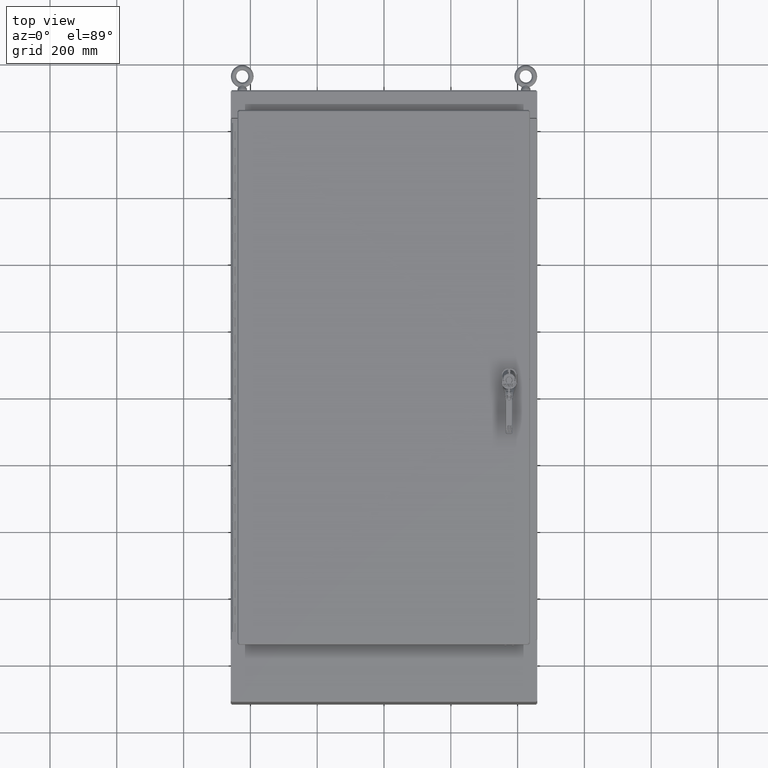
[diagram: clean part render]
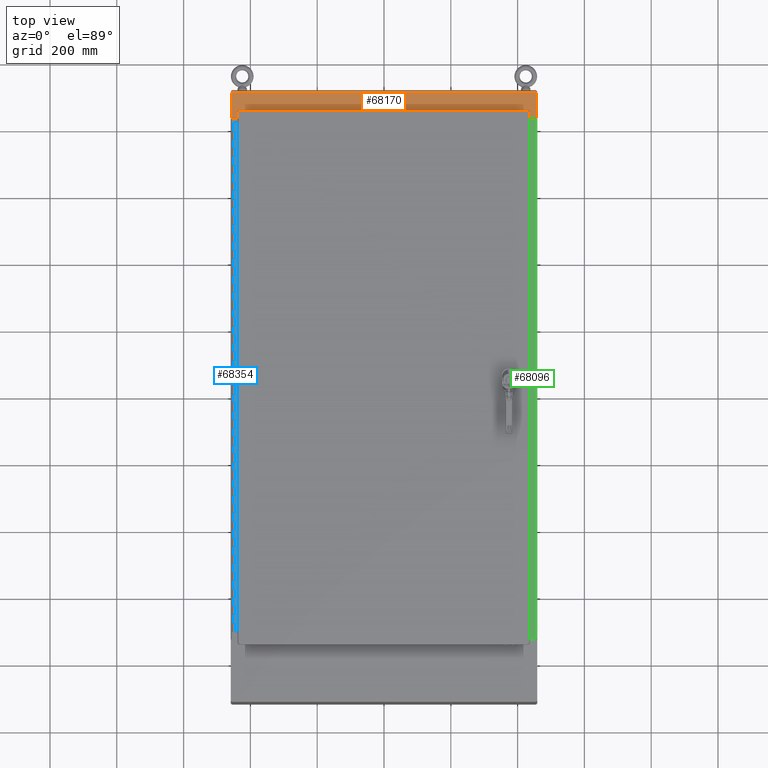
[diagram: same view with three faces highlighted in distinct colors, each labeled with its STEP entity id]
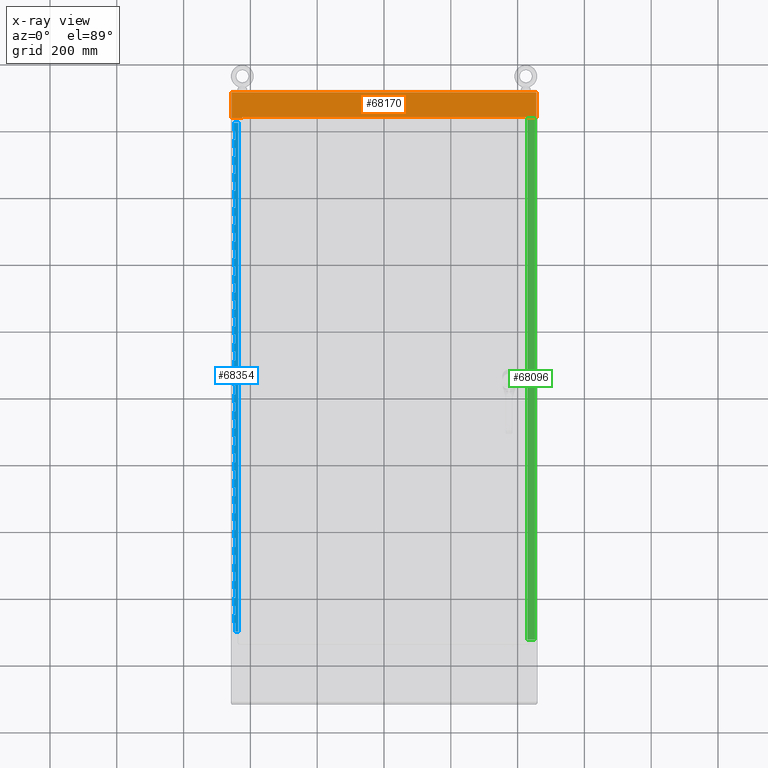
[diagram: x-ray of the same camera — body ghosted, the three highlighted faces saturated]
A machine part, top view with three faces highlighted in distinct colors.
The next image is the same camera in x-ray (body ghosted, the three faces saturated) — at least one of them is partly hidden behind the body in this view.
Their STEP definitions:

[orange] entity #68170 — the highlighted planar face has unit normal (0, -0, 1).
#9261=PLANE('',#71996);
#10439=FACE_OUTER_BOUND('',#13387,.T.);
#13387=EDGE_LOOP('',(#50561,#50562,#50563,#50564,#50565,#50566,#50567,#50568,
#50569,#50570,#50571,#50572));
#20109=LINE('',#96424,#25227);
#20111=LINE('',#96430,#25229);
#20124=LINE('',#96469,#25242);
#20158=LINE('',#96554,#25276);
#20160=LINE('',#96558,#25278);
#20161=LINE('',#96561,#25279);
#20163=LINE('',#96564,#25281);
#20164=LINE('',#96567,#25282);
#20166=LINE('',#96570,#25284);
#20167=LINE('',#96573,#25285);
#20168=LINE('',#96575,#25286);
#20169=LINE('',#96576,#25287);
#25227=VECTOR('',#78560,0.393700787401575);
#25229=VECTOR('',#78564,0.393700787401575);
#25242=VECTOR('',#78595,0.393700787401575);
#25276=VECTOR('',#78689,0.393700787401575);
#25278=VECTOR('',#78693,0.393700787401575);
#25279=VECTOR('',#78696,0.393700787401575);
#25281=VECTOR('',#78700,0.393700787401575);
#25282=VECTOR('',#78703,0.393700787401575);
#25284=VECTOR('',#78707,0.393700787401575);
#25285=VECTOR('',#78710,0.393700787401575);
#25286=VECTOR('',#78711,0.393700787401575);
#25287=VECTOR('',#78712,0.179624999999999);
#30299=VERTEX_POINT('',#96418);
#30301=VERTEX_POINT('',#96422);
#30302=VERTEX_POINT('',#96426);
#30304=VERTEX_POINT('',#96429);
#30310=VERTEX_POINT('',#96442);
#30318=VERTEX_POINT('',#96459);
#30321=VERTEX_POINT('',#96467);
#30343=VERTEX_POINT('',#96556);
#30344=VERTEX_POINT('',#96560);
#30345=VERTEX_POINT('',#96566);
#30346=VERTEX_POINT('',#96572);
#30347=VERTEX_POINT('',#96574);
#39634=EDGE_CURVE('',#30299,#30301,#20109,.T.);
#39636=EDGE_CURVE('',#30304,#30302,#20111,.T.);
#39655=EDGE_CURVE('',#30302,#30321,#20124,.T.);
#39699=EDGE_CURVE('',#30318,#30310,#20158,.T.);
#39701=EDGE_CURVE('',#30310,#30343,#20160,.T.);
#39702=EDGE_CURVE('',#30344,#30299,#20161,.T.);
#39704=EDGE_CURVE('',#30343,#30344,#20163,.T.);
#39705=EDGE_CURVE('',#30345,#30318,#20164,.T.);
#39707=EDGE_CURVE('',#30321,#30345,#20166,.T.);
#39708=EDGE_CURVE('',#30346,#30301,#20167,.T.);
#39709=EDGE_CURVE('',#30346,#30347,#20168,.T.);
#39710=EDGE_CURVE('',#30304,#30347,#20169,.T.);
#50561=ORIENTED_EDGE('',*,*,#39634,.T.);
#50562=ORIENTED_EDGE('',*,*,#39708,.F.);
#50563=ORIENTED_EDGE('',*,*,#39709,.T.);
#50564=ORIENTED_EDGE('',*,*,#39710,.F.);
#50565=ORIENTED_EDGE('',*,*,#39636,.T.);
#50566=ORIENTED_EDGE('',*,*,#39655,.T.);
#50567=ORIENTED_EDGE('',*,*,#39707,.T.);
#50568=ORIENTED_EDGE('',*,*,#39705,.T.);
#50569=ORIENTED_EDGE('',*,*,#39699,.T.);
#50570=ORIENTED_EDGE('',*,*,#39701,.T.);
#50571=ORIENTED_EDGE('',*,*,#39704,.T.);
#50572=ORIENTED_EDGE('',*,*,#39702,.T.);
#68170=ADVANCED_FACE('',(#10439),#9261,.T.);
#71996=AXIS2_PLACEMENT_3D('',#96571,#78708,#78709);
#78560=DIRECTION('',(1.,-4.67339864028056E-16,2.75119231462648E-16));
#78564=DIRECTION('',(1.,-4.67339864028056E-16,-4.66415019167958E-35));
#78595=DIRECTION('',(0.,-1.72379377816535E-15,1.));
#78689=DIRECTION('',(1.,-4.67339864028056E-16,4.19087991837034E-17));
#78693=DIRECTION('',(0.,-1.72379377816535E-15,1.));
#78696=DIRECTION('',(0.,1.72379377816535E-15,-1.));
#78700=DIRECTION('',(1.,-4.67339864028056E-16,-1.57132488603615E-30));
#78703=DIRECTION('',(0.,1.72379377816535E-15,-1.));
#78707=DIRECTION('',(1.,-4.67339864028056E-16,-1.57132488603615E-30));
#78708=DIRECTION('center_axis',(-4.67339864028056E-16,-1.,-1.72379377816535E-15));
#78709=DIRECTION('ref_axis',(1.,-4.67339864028057E-16,3.50484604917029E-16));
#78710=DIRECTION('',(5.91645678915759E-31,1.71512449944288E-15,-1.));
#78711=DIRECTION('',(-1.,4.67339864028056E-16,2.00421317790069E-31));
#78712=DIRECTION('',(-6.15811506551547E-31,-1.77635683940025E-15,1.));
#96418=CARTESIAN_POINT('',(16.6877,-9.01050000000001,-3.219));
#96422=CARTESIAN_POINT('',(17.9585,-9.01050000000001,-3.219));
#96424=CARTESIAN_POINT('',(8.34375,-9.0105,-3.219));
#96426=CARTESIAN_POINT('',(-16.6877,-9.01049999999999,-3.219));
#96429=CARTESIAN_POINT('',(-17.9585,-9.01049999999999,-3.219));
#96430=CARTESIAN_POINT('',(-8.97925,-9.0105,-3.219));
#96442=CARTESIAN_POINT('',(16.6875,-9.01050000000001,-3.07325));
#96459=CARTESIAN_POINT('',(-16.6875,-9.01049999999999,-3.07325));
#96467=CARTESIAN_POINT('',(-16.6877,-9.01049999999999,-3.07305));
#96469=CARTESIAN_POINT('',(-16.6877,-9.01049999999999,-2.31889267744987));
#96554=CARTESIAN_POINT('',(8.34375,-9.0105,-3.07325));
#96556=CARTESIAN_POINT('',(16.6875,-9.01050000000001,-3.07305));
#96558=CARTESIAN_POINT('',(16.6875,-9.01050000000001,-2.31889267744987));
#96560=CARTESIAN_POINT('',(16.6877,-9.01050000000001,-3.07305));
#96561=CARTESIAN_POINT('',(16.6877,-9.01050000000001,-2.41786767744987));
#96564=CARTESIAN_POINT('',(8.34385,-9.0105,-3.07305));
#96566=CARTESIAN_POINT('',(-16.6875,-9.01049999999999,-3.07305));
#96567=CARTESIAN_POINT('',(-16.6875,-9.01049999999999,-2.41786767744987));
#96570=CARTESIAN_POINT('',(-8.34375,-9.0105,-3.07305));
#96571=CARTESIAN_POINT('Origin',(7.74539600935802E-16,-9.0105,-1.56473535489973));
#96572=CARTESIAN_POINT('',(17.9585,-9.01050000000001,-0.140624999999999));
#96573=CARTESIAN_POINT('',(17.9585,-9.01050000000001,-0.140624999999999));
#96574=CARTESIAN_POINT('',(-17.9585,-9.0105,-0.140624999999999));
#96575=CARTESIAN_POINT('',(1.73930952906398E-15,-9.01050000000001,-0.140624999999999));
#96576=CARTESIAN_POINT('',(-17.9585,-9.0105,0.423683580401065));

[blue] entity #68354 — the highlighted planar face has unit normal (0.0872, -0, 0.9962).
#9416=PLANE('',#72322);
#10623=FACE_OUTER_BOUND('',#13583,.T.);
#13583=EDGE_LOOP('',(#51479,#51480,#51481,#51482,#51483,#51484,#51485,#51486,
#51487,#51488,#51489,#51490,#51491,#51492,#51493,#51494,#51495,#51496,#51497,
#51498,#51499,#51500,#51501,#51502,#51503,#51504,#51505,#51506,#51507,#51508,
#51509,#51510,#51511,#51512,#51513,#51514,#51515,#51516,#51517,#51518,#51519,
#51520,#51521,#51522,#51523,#51524,#51525,#51526,#51527,#51528,#51529,#51530,
#51531,#51532,#51533,#51534,#51535,#51536,#51537,#51538,#51539,#51540,#51541,
#51542,#51543,#51544,#51545,#51546,#51547,#51548,#51549,#51550,#51551,#51552,
#51553,#51554,#51555,#51556,#51557,#51558,#51559,#51560,#51561,#51562,#51563,
#51564,#51565,#51566,#51567,#51568,#51569,#51570,#51571,#51572,#51573,#51574,
#51575,#51576,#51577,#51578,#51579,#51580,#51581,#51582,#51583,#51584,#51585,
#51586,#51587,#51588,#51589,#51590,#51591,#51592,#51593,#51594,#51595,#51596,
#51597,#51598,#51599,#51600));
#20339=LINE('',#97349,#25457);
#20344=LINE('',#97361,#25462);
#20348=LINE('',#97372,#25466);
#20349=LINE('',#97378,#25467);
#20354=LINE('',#97390,#25472);
#20358=LINE('',#97401,#25476);
#20359=LINE('',#97407,#25477);
#20364=LINE('',#97419,#25482);
#20368=LINE('',#97430,#25486);
#20369=LINE('',#97436,#25487);
#20374=LINE('',#97448,#25492);
#20378=LINE('',#97459,#25496);
#20379=LINE('',#97465,#25497);
#20384=LINE('',#97477,#25502);
#20388=LINE('',#97488,#25506);
#20389=LINE('',#97494,#25507);
#20394=LINE('',#97506,#25512);
#20398=LINE('',#97517,#25516);
#20399=LINE('',#97523,#25517);
#20404=LINE('',#97535,#25522);
#20408=LINE('',#97546,#25526);
#20409=LINE('',#97552,#25527);
#20414=LINE('',#97564,#25532);
#20418=LINE('',#97575,#25536);
#20419=LINE('',#97581,#25537);
#20424=LINE('',#97593,#25542);
#20428=LINE('',#97604,#25546);
#20429=LINE('',#97610,#25547);
#20434=LINE('',#97622,#25552);
#20438=LINE('',#97633,#25556);
#20439=LINE('',#97639,#25557);
#20444=LINE('',#97651,#25562);
#20448=LINE('',#97662,#25566);
#20449=LINE('',#97668,#25567);
#20454=LINE('',#97680,#25572);
#20458=LINE('',#97691,#25576);
#20459=LINE('',#97697,#25577);
#20464=LINE('',#97709,#25582);
#20468=LINE('',#97720,#25586);
#20469=LINE('',#97726,#25587);
#20474=LINE('',#97738,#25592);
#20478=LINE('',#97749,#25596);
#20479=LINE('',#97755,#25597);
#20484=LINE('',#97767,#25602);
#20488=LINE('',#97778,#25606);
#20489=LINE('',#97784,#25607);
#20494=LINE('',#97796,#25612);
#20498=LINE('',#97807,#25616);
#20499=LINE('',#97813,#25617);
#20504=LINE('',#97825,#25622);
#20508=LINE('',#97836,#25626);
#20509=LINE('',#97842,#25627);
#20514=LINE('',#97854,#25632);
#20518=LINE('',#97865,#25636);
#20519=LINE('',#97871,#25637);
#20524=LINE('',#97883,#25642);
#20528=LINE('',#97894,#25646);
#20529=LINE('',#97900,#25647);
#20534=LINE('',#97912,#25652);
#20538=LINE('',#97923,#25656);
#20539=LINE('',#97929,#25657);
#20544=LINE('',#97941,#25662);
#20548=LINE('',#97952,#25666);
#20549=LINE('',#97958,#25667);
#20554=LINE('',#97970,#25672);
#20558=LINE('',#97981,#25676);
#20559=LINE('',#97987,#25677);
#20564=LINE('',#97999,#25682);
#20568=LINE('',#98010,#25686);
#20569=LINE('',#98016,#25687);
#20574=LINE('',#98028,#25692);
#20578=LINE('',#98039,#25696);
#20579=LINE('',#98045,#25697);
#20584=LINE('',#98057,#25702);
#20588=LINE('',#98068,#25706);
#20589=LINE('',#98074,#25707);
#20594=LINE('',#98086,#25712);
#20598=LINE('',#98097,#25716);
#20599=LINE('',#98103,#25717);
#20604=LINE('',#98115,#25722);
#20608=LINE('',#98126,#25726);
#20609=LINE('',#98132,#25727);
#20614=LINE('',#98144,#25732);
#20618=LINE('',#98155,#25736);
#20619=LINE('',#98161,#25737);
#20624=LINE('',#98173,#25742);
#20628=LINE('',#98184,#25746);
#20629=LINE('',#98186,#25747);
#20630=LINE('',#98187,#25748);
#20631=LINE('',#98188,#25749);
#20632=LINE('',#98189,#25750);
#20633=LINE('',#98190,#25751);
#20634=LINE('',#98191,#25752);
#20635=LINE('',#98192,#25753);
#20636=LINE('',#98193,#25754);
#20637=LINE('',#98194,#25755);
#20638=LINE('',#98195,#25756);
#20639=LINE('',#98196,#25757);
#20640=LINE('',#98197,#25758);
#20641=LINE('',#98198,#25759);
#20642=LINE('',#98199,#25760);
#20643=LINE('',#98200,#25761);
#20644=LINE('',#98201,#25762);
#20645=LINE('',#98202,#25763);
#20646=LINE('',#98203,#25764);
#20647=LINE('',#98204,#25765);
#20648=LINE('',#98205,#25766);
#20649=LINE('',#98206,#25767);
#20650=LINE('',#98207,#25768);
#20651=LINE('',#98208,#25769);
#20652=LINE('',#98209,#25770);
#20653=LINE('',#98210,#25771);
#20654=LINE('',#98211,#25772);
#20655=LINE('',#98212,#25773);
#20656=LINE('',#98213,#25774);
#20657=LINE('',#98215,#25775);
#20658=LINE('',#98217,#25776);
#20659=LINE('',#98219,#25777);
#20660=LINE('',#98221,#25778);
#20661=LINE('',#98223,#25779);
#20662=LINE('',#98225,#25780);
#20663=LINE('',#98226,#25781);
#25457=VECTOR('',#79130,0.393700787401575);
#25462=VECTOR('',#79139,0.393700787401575);
#25466=VECTOR('',#79149,0.393700787401575);
#25467=VECTOR('',#79154,0.393700787401575);
#25472=VECTOR('',#79163,0.393700787401575);
#25476=VECTOR('',#79173,0.393700787401575);
#25477=VECTOR('',#79178,0.393700787401575);
#25482=VECTOR('',#79187,0.393700787401575);
#25486=VECTOR('',#79197,0.393700787401575);
#25487=VECTOR('',#79202,0.393700787401575);
#25492=VECTOR('',#79211,0.393700787401575);
#25496=VECTOR('',#79221,0.393700787401575);
#25497=VECTOR('',#79226,0.393700787401575);
#25502=VECTOR('',#79235,0.393700787401575);
#25506=VECTOR('',#79245,0.393700787401575);
#25507=VECTOR('',#79250,0.393700787401575);
#25512=VECTOR('',#79259,0.393700787401575);
#25516=VECTOR('',#79269,0.393700787401575);
#25517=VECTOR('',#79274,0.393700787401575);
#25522=VECTOR('',#79283,0.393700787401575);
#25526=VECTOR('',#79293,0.393700787401575);
#25527=VECTOR('',#79298,0.393700787401575);
#25532=VECTOR('',#79307,0.393700787401575);
#25536=VECTOR('',#79317,0.393700787401575);
#25537=VECTOR('',#79322,0.393700787401575);
#25542=VECTOR('',#79331,0.393700787401575);
#25546=VECTOR('',#79341,0.393700787401575);
#25547=VECTOR('',#79346,0.393700787401575);
#25552=VECTOR('',#79355,0.393700787401575);
#25556=VECTOR('',#79365,0.393700787401575);
#25557=VECTOR('',#79370,0.393700787401575);
#25562=VECTOR('',#79379,0.393700787401575);
#25566=VECTOR('',#79389,0.393700787401575);
#25567=VECTOR('',#79394,0.393700787401575);
#25572=VECTOR('',#79403,0.393700787401575);
#25576=VECTOR('',#79413,0.393700787401575);
#25577=VECTOR('',#79418,0.393700787401575);
#25582=VECTOR('',#79427,0.393700787401575);
#25586=VECTOR('',#79437,0.393700787401575);
#25587=VECTOR('',#79442,0.393700787401575);
#25592=VECTOR('',#79451,0.393700787401575);
#25596=VECTOR('',#79461,0.393700787401575);
#25597=VECTOR('',#79466,0.393700787401575);
#25602=VECTOR('',#79475,0.393700787401575);
#25606=VECTOR('',#79485,0.393700787401575);
#25607=VECTOR('',#79490,0.393700787401575);
#25612=VECTOR('',#79499,0.393700787401575);
#25616=VECTOR('',#79509,0.393700787401575);
#25617=VECTOR('',#79514,0.393700787401575);
#25622=VECTOR('',#79523,0.393700787401575);
#25626=VECTOR('',#79533,0.393700787401575);
#25627=VECTOR('',#79538,0.393700787401575);
#25632=VECTOR('',#79547,0.393700787401575);
#25636=VECTOR('',#79557,0.393700787401575);
#25637=VECTOR('',#79562,0.393700787401575);
#25642=VECTOR('',#79571,0.393700787401575);
#25646=VECTOR('',#79581,0.393700787401575);
#25647=VECTOR('',#79586,0.393700787401575);
#25652=VECTOR('',#79595,0.393700787401575);
#25656=VECTOR('',#79605,0.393700787401575);
#25657=VECTOR('',#79610,0.393700787401575);
#25662=VECTOR('',#79619,0.393700787401575);
#25666=VECTOR('',#79629,0.393700787401575);
#25667=VECTOR('',#79634,0.393700787401575);
#25672=VECTOR('',#79643,0.393700787401575);
#25676=VECTOR('',#79653,0.393700787401575);
#25677=VECTOR('',#79658,0.393700787401575);
#25682=VECTOR('',#79667,0.393700787401575);
#25686=VECTOR('',#79677,0.393700787401575);
#25687=VECTOR('',#79682,0.393700787401575);
#25692=VECTOR('',#79691,0.393700787401575);
#25696=VECTOR('',#79701,0.393700787401575);
#25697=VECTOR('',#79706,0.393700787401575);
#25702=VECTOR('',#79715,0.393700787401575);
#25706=VECTOR('',#79725,0.393700787401575);
#25707=VECTOR('',#79730,0.393700787401575);
#25712=VECTOR('',#79739,0.393700787401575);
#25716=VECTOR('',#79749,0.393700787401575);
#25717=VECTOR('',#79754,0.393700787401575);
#25722=VECTOR('',#79763,0.393700787401575);
#25726=VECTOR('',#79773,0.393700787401575);
#25727=VECTOR('',#79778,0.393700787401575);
#25732=VECTOR('',#79787,0.393700787401575);
#25736=VECTOR('',#79797,0.393700787401575);
#25737=VECTOR('',#79802,0.393700787401575);
#25742=VECTOR('',#79811,0.393700787401575);
#25746=VECTOR('',#79821,0.393700787401575);
#25747=VECTOR('',#79824,0.393700787401575);
#25748=VECTOR('',#79825,0.393700787401575);
#25749=VECTOR('',#79826,0.393700787401575);
#25750=VECTOR('',#79827,0.393700787401575);
#25751=VECTOR('',#79828,0.393700787401575);
#25752=VECTOR('',#79829,0.393700787401575);
#25753=VECTOR('',#79830,0.393700787401575);
#25754=VECTOR('',#79831,0.393700787401575);
#25755=VECTOR('',#79832,0.393700787401575);
#25756=VECTOR('',#79833,0.393700787401575);
#25757=VECTOR('',#79834,0.393700787401575);
#25758=VECTOR('',#79835,0.393700787401575);
#25759=VECTOR('',#79836,0.393700787401575);
#25760=VECTOR('',#79837,0.393700787401575);
#25761=VECTOR('',#79838,0.393700787401575);
#25762=VECTOR('',#79839,0.393700787401575);
#25763=VECTOR('',#79840,0.393700787401575);
#25764=VECTOR('',#79841,0.393700787401575);
#25765=VECTOR('',#79842,0.393700787401575);
#25766=VECTOR('',#79843,0.393700787401575);
#25767=VECTOR('',#79844,0.393700787401575);
#25768=VECTOR('',#79845,0.393700787401575);
#25769=VECTOR('',#79846,0.393700787401575);
#25770=VECTOR('',#79847,0.393700787401575);
#25771=VECTOR('',#79848,0.393700787401575);
#25772=VECTOR('',#79849,0.393700787401575);
#25773=VECTOR('',#79850,0.393700787401575);
#25774=VECTOR('',#79851,0.393700787401575);
#25775=VECTOR('',#79852,0.393700787401575);
#25776=VECTOR('',#79853,0.393700787401575);
#25777=VECTOR('',#79854,0.393700787401575);
#25778=VECTOR('',#79855,0.393700787401575);
#25779=VECTOR('',#79856,0.393700787401575);
#25780=VECTOR('',#79857,0.393700787401575);
#25781=VECTOR('',#79858,0.393700787401575);
#30472=VERTEX_POINT('',#97345);
#30474=VERTEX_POINT('',#97348);
#30479=VERTEX_POINT('',#97360);
#30481=VERTEX_POINT('',#97365);
#30484=VERTEX_POINT('',#97374);
#30486=VERTEX_POINT('',#97377);
#30491=VERTEX_POINT('',#97389);
#30493=VERTEX_POINT('',#97394);
#30496=VERTEX_POINT('',#97403);
#30498=VERTEX_POINT('',#97406);
#30503=VERTEX_POINT('',#97418);
#30505=VERTEX_POINT('',#97423);
#30508=VERTEX_POINT('',#97432);
#30510=VERTEX_POINT('',#97435);
#30515=VERTEX_POINT('',#97447);
#30517=VERTEX_POINT('',#97452);
#30520=VERTEX_POINT('',#97461);
#30522=VERTEX_POINT('',#97464);
#30527=VERTEX_POINT('',#97476);
#30529=VERTEX_POINT('',#97481);
#30532=VERTEX_POINT('',#97490);
#30534=VERTEX_POINT('',#97493);
#30539=VERTEX_POINT('',#97505);
#30541=VERTEX_POINT('',#97510);
#30544=VERTEX_POINT('',#97519);
#30546=VERTEX_POINT('',#97522);
#30551=VERTEX_POINT('',#97534);
#30553=VERTEX_POINT('',#97539);
#30556=VERTEX_POINT('',#97548);
#30558=VERTEX_POINT('',#97551);
#30563=VERTEX_POINT('',#97563);
#30565=VERTEX_POINT('',#97568);
#30568=VERTEX_POINT('',#97577);
#30570=VERTEX_POINT('',#97580);
#30575=VERTEX_POINT('',#97592);
#30577=VERTEX_POINT('',#97597);
#30580=VERTEX_POINT('',#97606);
#30582=VERTEX_POINT('',#97609);
#30587=VERTEX_POINT('',#97621);
#30589=VERTEX_POINT('',#97626);
#30592=VERTEX_POINT('',#97635);
#30594=VERTEX_POINT('',#97638);
#30599=VERTEX_POINT('',#97650);
#30601=VERTEX_POINT('',#97655);
#30604=VERTEX_POINT('',#97664);
#30606=VERTEX_POINT('',#97667);
#30611=VERTEX_POINT('',#97679);
#30613=VERTEX_POINT('',#97684);
#30616=VERTEX_POINT('',#97693);
#30618=VERTEX_POINT('',#97696);
#30623=VERTEX_POINT('',#97708);
#30625=VERTEX_POINT('',#97713);
#30628=VERTEX_POINT('',#97722);
#30630=VERTEX_POINT('',#97725);
#30635=VERTEX_POINT('',#97737);
#30637=VERTEX_POINT('',#97742);
#30640=VERTEX_POINT('',#97751);
#30642=VERTEX_POINT('',#97754);
#30647=VERTEX_POINT('',#97766);
#30649=VERTEX_POINT('',#97771);
#30652=VERTEX_POINT('',#97780);
#30654=VERTEX_POINT('',#97783);
#30659=VERTEX_POINT('',#97795);
#30661=VERTEX_POINT('',#97800);
#30664=VERTEX_POINT('',#97809);
#30666=VERTEX_POINT('',#97812);
#30671=VERTEX_POINT('',#97824);
#30673=VERTEX_POINT('',#97829);
#30676=VERTEX_POINT('',#97838);
#30678=VERTEX_POINT('',#97841);
#30683=VERTEX_POINT('',#97853);
#30685=VERTEX_POINT('',#97858);
#30688=VERTEX_POINT('',#97867);
#30690=VERTEX_POINT('',#97870);
#30695=VERTEX_POINT('',#97882);
#30697=VERTEX_POINT('',#97887);
#30700=VERTEX_POINT('',#97896);
#30702=VERTEX_POINT('',#97899);
#30707=VERTEX_POINT('',#97911);
#30709=VERTEX_POINT('',#97916);
#30712=VERTEX_POINT('',#97925);
#30714=VERTEX_POINT('',#97928);
#30719=VERTEX_POINT('',#97940);
#30721=VERTEX_POINT('',#97945);
#30724=VERTEX_POINT('',#97954);
#30726=VERTEX_POINT('',#97957);
#30731=VERTEX_POINT('',#97969);
#30733=VERTEX_POINT('',#97974);
#30736=VERTEX_POINT('',#97983);
#30738=VERTEX_POINT('',#97986);
#30743=VERTEX_POINT('',#97998);
#30745=VERTEX_POINT('',#98003);
#30748=VERTEX_POINT('',#98012);
#30750=VERTEX_POINT('',#98015);
#30755=VERTEX_POINT('',#98027);
#30757=VERTEX_POINT('',#98032);
#30760=VERTEX_POINT('',#98041);
#30762=VERTEX_POINT('',#98044);
#30767=VERTEX_POINT('',#98056);
#30769=VERTEX_POINT('',#98061);
#30772=VERTEX_POINT('',#98070);
#30774=VERTEX_POINT('',#98073);
#30779=VERTEX_POINT('',#98085);
#30781=VERTEX_POINT('',#98090);
#30784=VERTEX_POINT('',#98099);
#30786=VERTEX_POINT('',#98102);
#30791=VERTEX_POINT('',#98114);
#30793=VERTEX_POINT('',#98119);
#30796=VERTEX_POINT('',#98128);
#30798=VERTEX_POINT('',#98131);
#30803=VERTEX_POINT('',#98143);
#30805=VERTEX_POINT('',#98148);
#30808=VERTEX_POINT('',#98157);
#30810=VERTEX_POINT('',#98160);
#30815=VERTEX_POINT('',#98172);
#30817=VERTEX_POINT('',#98177);
#30820=VERTEX_POINT('',#98214);
#30821=VERTEX_POINT('',#98216);
#30822=VERTEX_POINT('',#98218);
#30823=VERTEX_POINT('',#98220);
#30824=VERTEX_POINT('',#98222);
#30825=VERTEX_POINT('',#98224);
#39927=EDGE_CURVE('',#30474,#30472,#20339,.T.);
#39933=EDGE_CURVE('',#30479,#30474,#20344,.T.);
#39939=EDGE_CURVE('',#30481,#30479,#20348,.T.);
#39941=EDGE_CURVE('',#30486,#30484,#20349,.T.);
#39947=EDGE_CURVE('',#30491,#30486,#20354,.T.);
#39953=EDGE_CURVE('',#30493,#30491,#20358,.T.);
#39955=EDGE_CURVE('',#30498,#30496,#20359,.T.);
#39961=EDGE_CURVE('',#30503,#30498,#20364,.T.);
#39967=EDGE_CURVE('',#30505,#30503,#20368,.T.);
#39969=EDGE_CURVE('',#30510,#30508,#20369,.T.);
#39975=EDGE_CURVE('',#30515,#30510,#20374,.T.);
#39981=EDGE_CURVE('',#30517,#30515,#20378,.T.);
#39983=EDGE_CURVE('',#30522,#30520,#20379,.T.);
#39989=EDGE_CURVE('',#30527,#30522,#20384,.T.);
#39995=EDGE_CURVE('',#30529,#30527,#20388,.T.);
#39997=EDGE_CURVE('',#30534,#30532,#20389,.T.);
#40003=EDGE_CURVE('',#30539,#30534,#20394,.T.);
#40009=EDGE_CURVE('',#30541,#30539,#20398,.T.);
#40011=EDGE_CURVE('',#30546,#30544,#20399,.T.);
#40017=EDGE_CURVE('',#30551,#30546,#20404,.T.);
#40023=EDGE_CURVE('',#30553,#30551,#20408,.T.);
#40025=EDGE_CURVE('',#30558,#30556,#20409,.T.);
#40031=EDGE_CURVE('',#30563,#30558,#20414,.T.);
#40037=EDGE_CURVE('',#30565,#30563,#20418,.T.);
#40039=EDGE_CURVE('',#30570,#30568,#20419,.T.);
#40045=EDGE_CURVE('',#30575,#30570,#20424,.T.);
#40051=EDGE_CURVE('',#30577,#30575,#20428,.T.);
#40053=EDGE_CURVE('',#30582,#30580,#20429,.T.);
#40059=EDGE_CURVE('',#30587,#30582,#20434,.T.);
#40065=EDGE_CURVE('',#30589,#30587,#20438,.T.);
#40067=EDGE_CURVE('',#30594,#30592,#20439,.T.);
#40073=EDGE_CURVE('',#30599,#30594,#20444,.T.);
#40079=EDGE_CURVE('',#30601,#30599,#20448,.T.);
#40081=EDGE_CURVE('',#30606,#30604,#20449,.T.);
#40087=EDGE_CURVE('',#30611,#30606,#20454,.T.);
#40093=EDGE_CURVE('',#30613,#30611,#20458,.T.);
#40095=EDGE_CURVE('',#30618,#30616,#20459,.T.);
#40101=EDGE_CURVE('',#30623,#30618,#20464,.T.);
#40107=EDGE_CURVE('',#30625,#30623,#20468,.T.);
#40109=EDGE_CURVE('',#30630,#30628,#20469,.T.);
#40115=EDGE_CURVE('',#30635,#30630,#20474,.T.);
#40121=EDGE_CURVE('',#30637,#30635,#20478,.T.);
#40123=EDGE_CURVE('',#30642,#30640,#20479,.T.);
#40129=EDGE_CURVE('',#30647,#30642,#20484,.T.);
#40135=EDGE_CURVE('',#30649,#30647,#20488,.T.);
#40137=EDGE_CURVE('',#30654,#30652,#20489,.T.);
#40143=EDGE_CURVE('',#30659,#30654,#20494,.T.);
#40149=EDGE_CURVE('',#30661,#30659,#20498,.T.);
#40151=EDGE_CURVE('',#30666,#30664,#20499,.T.);
#40157=EDGE_CURVE('',#30671,#30666,#20504,.T.);
#40163=EDGE_CURVE('',#30673,#30671,#20508,.T.);
#40165=EDGE_CURVE('',#30678,#30676,#20509,.T.);
#40171=EDGE_CURVE('',#30683,#30678,#20514,.T.);
#40177=EDGE_CURVE('',#30685,#30683,#20518,.T.);
#40179=EDGE_CURVE('',#30690,#30688,#20519,.T.);
#40185=EDGE_CURVE('',#30695,#30690,#20524,.T.);
#40191=EDGE_CURVE('',#30697,#30695,#20528,.T.);
#40193=EDGE_CURVE('',#30702,#30700,#20529,.T.);
#40199=EDGE_CURVE('',#30707,#30702,#20534,.T.);
#40205=EDGE_CURVE('',#30709,#30707,#20538,.T.);
#40207=EDGE_CURVE('',#30714,#30712,#20539,.T.);
#40213=EDGE_CURVE('',#30719,#30714,#20544,.T.);
#40219=EDGE_CURVE('',#30721,#30719,#20548,.T.);
#40221=EDGE_CURVE('',#30726,#30724,#20549,.T.);
#40227=EDGE_CURVE('',#30731,#30726,#20554,.T.);
#40233=EDGE_CURVE('',#30733,#30731,#20558,.T.);
#40235=EDGE_CURVE('',#30738,#30736,#20559,.T.);
#40241=EDGE_CURVE('',#30743,#30738,#20564,.T.);
#40247=EDGE_CURVE('',#30745,#30743,#20568,.T.);
#40249=EDGE_CURVE('',#30750,#30748,#20569,.T.);
#40255=EDGE_CURVE('',#30755,#30750,#20574,.T.);
#40261=EDGE_CURVE('',#30757,#30755,#20578,.T.);
#40263=EDGE_CURVE('',#30762,#30760,#20579,.T.);
#40269=EDGE_CURVE('',#30767,#30762,#20584,.T.);
#40275=EDGE_CURVE('',#30769,#30767,#20588,.T.);
#40277=EDGE_CURVE('',#30774,#30772,#20589,.T.);
#40283=EDGE_CURVE('',#30779,#30774,#20594,.T.);
#40289=EDGE_CURVE('',#30781,#30779,#20598,.T.);
#40291=EDGE_CURVE('',#30786,#30784,#20599,.T.);
#40297=EDGE_CURVE('',#30791,#30786,#20604,.T.);
#40303=EDGE_CURVE('',#30793,#30791,#20608,.T.);
#40305=EDGE_CURVE('',#30798,#30796,#20609,.T.);
#40311=EDGE_CURVE('',#30803,#30798,#20614,.T.);
#40317=EDGE_CURVE('',#30805,#30803,#20618,.T.);
#40319=EDGE_CURVE('',#30810,#30808,#20619,.T.);
#40325=EDGE_CURVE('',#30815,#30810,#20624,.T.);
#40331=EDGE_CURVE('',#30817,#30815,#20628,.T.);
#40332=EDGE_CURVE('',#30472,#30493,#20629,.T.);
#40333=EDGE_CURVE('',#30484,#30505,#20630,.T.);
#40334=EDGE_CURVE('',#30496,#30517,#20631,.T.);
#40335=EDGE_CURVE('',#30508,#30529,#20632,.T.);
#40336=EDGE_CURVE('',#30520,#30541,#20633,.T.);
#40337=EDGE_CURVE('',#30532,#30553,#20634,.T.);
#40338=EDGE_CURVE('',#30544,#30565,#20635,.T.);
#40339=EDGE_CURVE('',#30556,#30577,#20636,.T.);
#40340=EDGE_CURVE('',#30568,#30589,#20637,.T.);
#40341=EDGE_CURVE('',#30580,#30601,#20638,.T.);
#40342=EDGE_CURVE('',#30592,#30613,#20639,.T.);
#40343=EDGE_CURVE('',#30604,#30625,#20640,.T.);
#40344=EDGE_CURVE('',#30616,#30637,#20641,.T.);
#40345=EDGE_CURVE('',#30628,#30649,#20642,.T.);
#40346=EDGE_CURVE('',#30640,#30661,#20643,.T.);
#40347=EDGE_CURVE('',#30652,#30673,#20644,.T.);
#40348=EDGE_CURVE('',#30664,#30685,#20645,.T.);
#40349=EDGE_CURVE('',#30676,#30697,#20646,.T.);
#40350=EDGE_CURVE('',#30688,#30709,#20647,.T.);
#40351=EDGE_CURVE('',#30700,#30721,#20648,.T.);
#40352=EDGE_CURVE('',#30712,#30733,#20649,.T.);
#40353=EDGE_CURVE('',#30724,#30745,#20650,.T.);
#40354=EDGE_CURVE('',#30736,#30757,#20651,.T.);
#40355=EDGE_CURVE('',#30748,#30769,#20652,.T.);
#40356=EDGE_CURVE('',#30760,#30781,#20653,.T.);
#40357=EDGE_CURVE('',#30772,#30793,#20654,.T.);
#40358=EDGE_CURVE('',#30784,#30805,#20655,.T.);
#40359=EDGE_CURVE('',#30796,#30817,#20656,.T.);
#40360=EDGE_CURVE('',#30808,#30820,#20657,.T.);
#40361=EDGE_CURVE('',#30820,#30821,#20658,.T.);
#40362=EDGE_CURVE('',#30821,#30822,#20659,.T.);
#40363=EDGE_CURVE('',#30822,#30823,#20660,.T.);
#40364=EDGE_CURVE('',#30824,#30823,#20661,.T.);
#40365=EDGE_CURVE('',#30824,#30825,#20662,.T.);
#40366=EDGE_CURVE('',#30825,#30481,#20663,.T.);
#51479=ORIENTED_EDGE('',*,*,#39939,.T.);
#51480=ORIENTED_EDGE('',*,*,#39933,.T.);
#51481=ORIENTED_EDGE('',*,*,#39927,.T.);
#51482=ORIENTED_EDGE('',*,*,#40332,.T.);
#51483=ORIENTED_EDGE('',*,*,#39953,.T.);
#51484=ORIENTED_EDGE('',*,*,#39947,.T.);
#51485=ORIENTED_EDGE('',*,*,#39941,.T.);
#51486=ORIENTED_EDGE('',*,*,#40333,.T.);
#51487=ORIENTED_EDGE('',*,*,#39967,.T.);
#51488=ORIENTED_EDGE('',*,*,#39961,.T.);
#51489=ORIENTED_EDGE('',*,*,#39955,.T.);
#51490=ORIENTED_EDGE('',*,*,#40334,.T.);
#51491=ORIENTED_EDGE('',*,*,#39981,.T.);
#51492=ORIENTED_EDGE('',*,*,#39975,.T.);
#51493=ORIENTED_EDGE('',*,*,#39969,.T.);
#51494=ORIENTED_EDGE('',*,*,#40335,.T.);
#51495=ORIENTED_EDGE('',*,*,#39995,.T.);
#51496=ORIENTED_EDGE('',*,*,#39989,.T.);
#51497=ORIENTED_EDGE('',*,*,#39983,.T.);
#51498=ORIENTED_EDGE('',*,*,#40336,.T.);
#51499=ORIENTED_EDGE('',*,*,#40009,.T.);
#51500=ORIENTED_EDGE('',*,*,#40003,.T.);
#51501=ORIENTED_EDGE('',*,*,#39997,.T.);
#51502=ORIENTED_EDGE('',*,*,#40337,.T.);
#51503=ORIENTED_EDGE('',*,*,#40023,.T.);
#51504=ORIENTED_EDGE('',*,*,#40017,.T.);
#51505=ORIENTED_EDGE('',*,*,#40011,.T.);
#51506=ORIENTED_EDGE('',*,*,#40338,.T.);
#51507=ORIENTED_EDGE('',*,*,#40037,.T.);
#51508=ORIENTED_EDGE('',*,*,#40031,.T.);
#51509=ORIENTED_EDGE('',*,*,#40025,.T.);
#51510=ORIENTED_EDGE('',*,*,#40339,.T.);
#51511=ORIENTED_EDGE('',*,*,#40051,.T.);
#51512=ORIENTED_EDGE('',*,*,#40045,.T.);
#51513=ORIENTED_EDGE('',*,*,#40039,.T.);
#51514=ORIENTED_EDGE('',*,*,#40340,.T.);
#51515=ORIENTED_EDGE('',*,*,#40065,.T.);
#51516=ORIENTED_EDGE('',*,*,#40059,.T.);
#51517=ORIENTED_EDGE('',*,*,#40053,.T.);
#51518=ORIENTED_EDGE('',*,*,#40341,.T.);
#51519=ORIENTED_EDGE('',*,*,#40079,.T.);
#51520=ORIENTED_EDGE('',*,*,#40073,.T.);
#51521=ORIENTED_EDGE('',*,*,#40067,.T.);
#51522=ORIENTED_EDGE('',*,*,#40342,.T.);
#51523=ORIENTED_EDGE('',*,*,#40093,.T.);
#51524=ORIENTED_EDGE('',*,*,#40087,.T.);
#51525=ORIENTED_EDGE('',*,*,#40081,.T.);
#51526=ORIENTED_EDGE('',*,*,#40343,.T.);
#51527=ORIENTED_EDGE('',*,*,#40107,.T.);
#51528=ORIENTED_EDGE('',*,*,#40101,.T.);
#51529=ORIENTED_EDGE('',*,*,#40095,.T.);
#51530=ORIENTED_EDGE('',*,*,#40344,.T.);
#51531=ORIENTED_EDGE('',*,*,#40121,.T.);
#51532=ORIENTED_EDGE('',*,*,#40115,.T.);
#51533=ORIENTED_EDGE('',*,*,#40109,.T.);
#51534=ORIENTED_EDGE('',*,*,#40345,.T.);
#51535=ORIENTED_EDGE('',*,*,#40135,.T.);
#51536=ORIENTED_EDGE('',*,*,#40129,.T.);
#51537=ORIENTED_EDGE('',*,*,#40123,.T.);
#51538=ORIENTED_EDGE('',*,*,#40346,.T.);
#51539=ORIENTED_EDGE('',*,*,#40149,.T.);
#51540=ORIENTED_EDGE('',*,*,#40143,.T.);
#51541=ORIENTED_EDGE('',*,*,#40137,.T.);
#51542=ORIENTED_EDGE('',*,*,#40347,.T.);
#51543=ORIENTED_EDGE('',*,*,#40163,.T.);
#51544=ORIENTED_EDGE('',*,*,#40157,.T.);
#51545=ORIENTED_EDGE('',*,*,#40151,.T.);
#51546=ORIENTED_EDGE('',*,*,#40348,.T.);
#51547=ORIENTED_EDGE('',*,*,#40177,.T.);
#51548=ORIENTED_EDGE('',*,*,#40171,.T.);
#51549=ORIENTED_EDGE('',*,*,#40165,.T.);
#51550=ORIENTED_EDGE('',*,*,#40349,.T.);
#51551=ORIENTED_EDGE('',*,*,#40191,.T.);
#51552=ORIENTED_EDGE('',*,*,#40185,.T.);
#51553=ORIENTED_EDGE('',*,*,#40179,.T.);
#51554=ORIENTED_EDGE('',*,*,#40350,.T.);
#51555=ORIENTED_EDGE('',*,*,#40205,.T.);
#51556=ORIENTED_EDGE('',*,*,#40199,.T.);
#51557=ORIENTED_EDGE('',*,*,#40193,.T.);
#51558=ORIENTED_EDGE('',*,*,#40351,.T.);
#51559=ORIENTED_EDGE('',*,*,#40219,.T.);
#51560=ORIENTED_EDGE('',*,*,#40213,.T.);
#51561=ORIENTED_EDGE('',*,*,#40207,.T.);
#51562=ORIENTED_EDGE('',*,*,#40352,.T.);
#51563=ORIENTED_EDGE('',*,*,#40233,.T.);
#51564=ORIENTED_EDGE('',*,*,#40227,.T.);
#51565=ORIENTED_EDGE('',*,*,#40221,.T.);
#51566=ORIENTED_EDGE('',*,*,#40353,.T.);
#51567=ORIENTED_EDGE('',*,*,#40247,.T.);
#51568=ORIENTED_EDGE('',*,*,#40241,.T.);
#51569=ORIENTED_EDGE('',*,*,#40235,.T.);
#51570=ORIENTED_EDGE('',*,*,#40354,.T.);
#51571=ORIENTED_EDGE('',*,*,#40261,.T.);
#51572=ORIENTED_EDGE('',*,*,#40255,.T.);
#51573=ORIENTED_EDGE('',*,*,#40249,.T.);
#51574=ORIENTED_EDGE('',*,*,#40355,.T.);
#51575=ORIENTED_EDGE('',*,*,#40275,.T.);
#51576=ORIENTED_EDGE('',*,*,#40269,.T.);
#51577=ORIENTED_EDGE('',*,*,#40263,.T.);
#51578=ORIENTED_EDGE('',*,*,#40356,.T.);
#51579=ORIENTED_EDGE('',*,*,#40289,.T.);
#51580=ORIENTED_EDGE('',*,*,#40283,.T.);
#51581=ORIENTED_EDGE('',*,*,#40277,.T.);
#51582=ORIENTED_EDGE('',*,*,#40357,.T.);
#51583=ORIENTED_EDGE('',*,*,#40303,.T.);
#51584=ORIENTED_EDGE('',*,*,#40297,.T.);
#51585=ORIENTED_EDGE('',*,*,#40291,.T.);
#51586=ORIENTED_EDGE('',*,*,#40358,.T.);
#51587=ORIENTED_EDGE('',*,*,#40317,.T.);
#51588=ORIENTED_EDGE('',*,*,#40311,.T.);
#51589=ORIENTED_EDGE('',*,*,#40305,.T.);
#51590=ORIENTED_EDGE('',*,*,#40359,.T.);
#51591=ORIENTED_EDGE('',*,*,#40331,.T.);
#51592=ORIENTED_EDGE('',*,*,#40325,.T.);
#51593=ORIENTED_EDGE('',*,*,#40319,.T.);
#51594=ORIENTED_EDGE('',*,*,#40360,.T.);
#51595=ORIENTED_EDGE('',*,*,#40361,.T.);
#51596=ORIENTED_EDGE('',*,*,#40362,.T.);
#51597=ORIENTED_EDGE('',*,*,#40363,.T.);
#51598=ORIENTED_EDGE('',*,*,#40364,.F.);
#51599=ORIENTED_EDGE('',*,*,#40365,.T.);
#51600=ORIENTED_EDGE('',*,*,#40366,.T.);
#68354=ADVANCED_FACE('',(#10623),#9416,.T.);
#72322=AXIS2_PLACEMENT_3D('',#98185,#79822,#79823);
#79130=DIRECTION('',(1.,1.57313624040339E-16,-2.5910215143748E-29));
#79139=DIRECTION('',(0.,0.,1.));
#79149=DIRECTION('',(-1.,-1.57313624040339E-16,-2.36571529573352E-29));
#79154=DIRECTION('',(1.,1.57313624040339E-16,-2.5910215143748E-29));
#79163=DIRECTION('',(0.,0.,1.));
#79173=DIRECTION('',(-1.,-1.57313624040339E-16,-2.36571529573352E-29));
#79178=DIRECTION('',(1.,1.57313624040339E-16,-2.5910215143748E-29));
#79187=DIRECTION('',(0.,0.,1.));
#79197=DIRECTION('',(-1.,-1.57313624040339E-16,-2.36571529573352E-29));
#79202=DIRECTION('',(1.,1.57313624040339E-16,-2.5910215143748E-29));
#79211=DIRECTION('',(0.,0.,1.));
#79221=DIRECTION('',(-1.,-1.57313624040339E-16,-2.36571529573352E-29));
#79226=DIRECTION('',(1.,1.57313624040339E-16,-2.5910215143748E-29));
#79235=DIRECTION('',(0.,0.,1.));
#79245=DIRECTION('',(-1.,-1.57313624040339E-16,-2.36571529573352E-29));
#79250=DIRECTION('',(1.,1.57313624040339E-16,-2.5910215143748E-29));
#79259=DIRECTION('',(0.,0.,1.));
#79269=DIRECTION('',(-1.,-1.57313624040339E-16,-2.36571529573352E-29));
#79274=DIRECTION('',(1.,1.57313624040339E-16,-2.5910215143748E-29));
#79283=DIRECTION('',(0.,0.,1.));
#79293=DIRECTION('',(-1.,-1.57313624040339E-16,-2.36571529573352E-29));
#79298=DIRECTION('',(1.,1.57313624040339E-16,-2.5910215143748E-29));
#79307=DIRECTION('',(0.,0.,1.));
#79317=DIRECTION('',(-1.,-1.57313624040339E-16,-2.36571529573352E-29));
#79322=DIRECTION('',(1.,1.57313624040339E-16,-2.5910215143748E-29));
#79331=DIRECTION('',(0.,0.,1.));
#79341=DIRECTION('',(-1.,-1.57313624040339E-16,-2.36571529573352E-29));
#79346=DIRECTION('',(1.,1.57313624040339E-16,-2.5910215143748E-29));
#79355=DIRECTION('',(0.,0.,1.));
#79365=DIRECTION('',(-1.,-1.57313624040339E-16,-2.36571529573352E-29));
#79370=DIRECTION('',(1.,1.57313624040339E-16,-2.5910215143748E-29));
#79379=DIRECTION('',(0.,0.,1.));
#79389=DIRECTION('',(-1.,-1.57313624040339E-16,-2.36571529573352E-29));
#79394=DIRECTION('',(1.,1.57313624040339E-16,-2.5910215143748E-29));
#79403=DIRECTION('',(0.,0.,1.));
#79413=DIRECTION('',(-1.,-1.57313624040339E-16,-2.36571529573352E-29));
#79418=DIRECTION('',(1.,1.57313624040339E-16,-2.5910215143748E-29));
#79427=DIRECTION('',(0.,0.,1.));
#79437=DIRECTION('',(-1.,-1.57313624040339E-16,-2.36571529573352E-29));
#79442=DIRECTION('',(1.,1.57313624040339E-16,-2.5910215143748E-29));
#79451=DIRECTION('',(0.,0.,1.));
#79461=DIRECTION('',(-1.,-1.57313624040339E-16,-2.36571529573352E-29));
#79466=DIRECTION('',(1.,1.57313624040339E-16,-2.5910215143748E-29));
#79475=DIRECTION('',(0.,0.,1.));
#79485=DIRECTION('',(-1.,-1.57313624040339E-16,-2.36571529573352E-29));
#79490=DIRECTION('',(1.,1.57313624040339E-16,-2.5910215143748E-29));
#79499=DIRECTION('',(0.,0.,1.));
#79509=DIRECTION('',(-1.,-1.57313624040339E-16,-2.36571529573352E-29));
#79514=DIRECTION('',(1.,1.57313624040339E-16,-2.5910215143748E-29));
#79523=DIRECTION('',(0.,0.,1.));
#79533=DIRECTION('',(-1.,-1.57313624040339E-16,-2.36571529573352E-29));
#79538=DIRECTION('',(1.,1.57313624040339E-16,-2.5910215143748E-29));
#79547=DIRECTION('',(0.,0.,1.));
#79557=DIRECTION('',(-1.,-1.57313624040339E-16,-2.36571529573352E-29));
#79562=DIRECTION('',(1.,1.57313624040339E-16,-2.5910215143748E-29));
#79571=DIRECTION('',(0.,0.,1.));
#79581=DIRECTION('',(-1.,-1.57313624040339E-16,-2.36571529573352E-29));
#79586=DIRECTION('',(1.,1.57313624040339E-16,-2.5910215143748E-29));
#79595=DIRECTION('',(0.,0.,1.));
#79605=DIRECTION('',(-1.,-1.57313624040339E-16,-2.36571529573352E-29));
#79610=DIRECTION('',(1.,1.57313624040339E-16,-2.5910215143748E-29));
#79619=DIRECTION('',(0.,0.,1.));
#79629=DIRECTION('',(-1.,-1.57313624040339E-16,-2.36571529573352E-29));
#79634=DIRECTION('',(1.,1.57313624040339E-16,-2.5910215143748E-29));
#79643=DIRECTION('',(0.,0.,1.));
#79653=DIRECTION('',(-1.,-1.57313624040339E-16,-2.36571529573352E-29));
#79658=DIRECTION('',(1.,1.57313624040339E-16,-2.5910215143748E-29));
#79667=DIRECTION('',(0.,0.,1.));
#79677=DIRECTION('',(-1.,-1.57313624040339E-16,-2.36571529573352E-29));
#79682=DIRECTION('',(1.,1.57313624040339E-16,-2.5910215143748E-29));
#79691=DIRECTION('',(0.,0.,1.));
#79701=DIRECTION('',(-1.,-1.57313624040339E-16,-2.36571529573352E-29));
#79706=DIRECTION('',(1.,1.57313624040339E-16,-2.5910215143748E-29));
#79715=DIRECTION('',(0.,0.,1.));
#79725=DIRECTION('',(-1.,-1.57313624040339E-16,-2.36571529573352E-29));
#79730=DIRECTION('',(1.,1.57313624040339E-16,-2.5910215143748E-29));
#79739=DIRECTION('',(0.,0.,1.));
#79749=DIRECTION('',(-1.,-1.57313624040339E-16,-2.36571529573352E-29));
#79754=DIRECTION('',(1.,1.57313624040339E-16,-2.5910215143748E-29));
#79763=DIRECTION('',(0.,0.,1.));
#79773=DIRECTION('',(-1.,-1.57313624040339E-16,-2.36571529573352E-29));
#79778=DIRECTION('',(1.,1.57313624040339E-16,-2.5910215143748E-29));
#79787=DIRECTION('',(0.,0.,1.));
#79797=DIRECTION('',(-1.,-1.57313624040339E-16,-2.36571529573352E-29));
#79802=DIRECTION('',(1.,1.57313624040339E-16,-2.5910215143748E-29));
#79811=DIRECTION('',(0.,0.,1.));
#79821=DIRECTION('',(-1.,-1.57313624040339E-16,-2.36571529573352E-29));
#79822=DIRECTION('center_axis',(1.57313624040339E-16,-1.,0.));
#79823=DIRECTION('ref_axis',(0.,0.,-1.));
#79824=DIRECTION('',(0.,0.,1.));
#79825=DIRECTION('',(0.,0.,1.));
#79826=DIRECTION('',(0.,0.,1.));
#79827=DIRECTION('',(0.,0.,1.));
#79828=DIRECTION('',(0.,0.,1.));
#79829=DIRECTION('',(0.,0.,1.));
#79830=DIRECTION('',(0.,0.,1.));
#79831=DIRECTION('',(0.,0.,1.));
#79832=DIRECTION('',(0.,0.,1.));
#79833=DIRECTION('',(0.,0.,1.));
#79834=DIRECTION('',(0.,0.,1.));
#79835=DIRECTION('',(0.,0.,1.));
#79836=DIRECTION('',(0.,0.,1.));
#79837=DIRECTION('',(0.,0.,1.));
#79838=DIRECTION('',(0.,0.,1.));
#79839=DIRECTION('',(0.,0.,1.));
#79840=DIRECTION('',(0.,0.,1.));
#79841=DIRECTION('',(0.,0.,1.));
#79842=DIRECTION('',(0.,0.,1.));
#79843=DIRECTION('',(0.,0.,1.));
#79844=DIRECTION('',(0.,0.,1.));
#79845=DIRECTION('',(0.,0.,1.));
#79846=DIRECTION('',(0.,0.,1.));
#79847=DIRECTION('',(0.,0.,1.));
#79848=DIRECTION('',(0.,0.,1.));
#79849=DIRECTION('',(0.,0.,1.));
#79850=DIRECTION('',(0.,0.,1.));
#79851=DIRECTION('',(0.,0.,1.));
#79852=DIRECTION('',(0.,0.,1.));
#79853=DIRECTION('',(-1.,-1.57313624040339E-16,-2.36571529573352E-29));
#79854=DIRECTION('',(0.,0.,1.));
#79855=DIRECTION('',(-1.,-1.57313624040339E-16,0.));
#79856=DIRECTION('',(0.,0.,1.));
#79857=DIRECTION('',(1.,1.57313624040339E-16,0.));
#79858=DIRECTION('',(0.,0.,1.));
#97345=CARTESIAN_POINT('',(0.,-0.16275,2.00000000000001));
#97348=CARTESIAN_POINT('',(-0.18,-0.16275,2.00000000000001));
#97349=CARTESIAN_POINT('',(6.6052870563906E-18,-0.16275,2.00000000000002));
#97360=CARTESIAN_POINT('',(-0.18,-0.16275,0.98000000000002));
#97361=CARTESIAN_POINT('',(-0.18,-0.16275,1.));
#97365=CARTESIAN_POINT('',(0.,-0.16275,0.980000000000009));
#97372=CARTESIAN_POINT('',(6.60528705635309E-18,-0.16275,0.98000000000002));
#97374=CARTESIAN_POINT('',(0.,-0.16275,4.));
#97377=CARTESIAN_POINT('',(-0.18,-0.16275,4.));
#97378=CARTESIAN_POINT('',(6.26735679775047E-18,-0.16275,4.00000000000001));
#97389=CARTESIAN_POINT('',(-0.18,-0.16275,2.98000000000001));
#97390=CARTESIAN_POINT('',(-0.18,-0.16275,2.));
#97394=CARTESIAN_POINT('',(0.,-0.16275,2.98));
#97401=CARTESIAN_POINT('',(6.2673567976634E-18,-0.16275,2.98000000000001));
#97403=CARTESIAN_POINT('',(0.,-0.16275,6.00000000000001));
#97406=CARTESIAN_POINT('',(-0.18,-0.16275,6.00000000000001));
#97407=CARTESIAN_POINT('',(5.92942653911033E-18,-0.16275,6.00000000000002));
#97418=CARTESIAN_POINT('',(-0.18,-0.16275,4.98000000000002));
#97419=CARTESIAN_POINT('',(-0.18,-0.16275,3.));
#97423=CARTESIAN_POINT('',(0.,-0.16275,4.98000000000001));
#97430=CARTESIAN_POINT('',(5.92942653897369E-18,-0.16275,4.98000000000002));
#97432=CARTESIAN_POINT('',(0.,-0.16275,8.));
#97435=CARTESIAN_POINT('',(-0.18,-0.16275,8.));
#97436=CARTESIAN_POINT('',(5.5914962804702E-18,-0.16275,8.00000000000001));
#97447=CARTESIAN_POINT('',(-0.18,-0.16275,6.98000000000001));
#97448=CARTESIAN_POINT('',(-0.18,-0.16275,4.));
#97452=CARTESIAN_POINT('',(0.,-0.16275,6.98));
#97459=CARTESIAN_POINT('',(5.591496280284E-18,-0.16275,6.98000000000001));
#97461=CARTESIAN_POINT('',(0.,-0.16275,10.));
#97464=CARTESIAN_POINT('',(-0.18,-0.16275,10.));
#97465=CARTESIAN_POINT('',(5.25356602183007E-18,-0.16275,10.));
#97476=CARTESIAN_POINT('',(-0.18,-0.16275,8.98000000000001));
#97477=CARTESIAN_POINT('',(-0.18,-0.16275,5.));
#97481=CARTESIAN_POINT('',(0.,-0.16275,8.98));
#97488=CARTESIAN_POINT('',(5.2535660215943E-18,-0.16275,8.98000000000001));
#97490=CARTESIAN_POINT('',(0.,-0.16275,12.));
#97493=CARTESIAN_POINT('',(-0.18,-0.16275,12.));
#97494=CARTESIAN_POINT('',(4.91563576318994E-18,-0.16275,12.));
#97505=CARTESIAN_POINT('',(-0.18,-0.16275,10.98));
#97506=CARTESIAN_POINT('',(-0.18,-0.16275,6.));
#97510=CARTESIAN_POINT('',(0.,-0.16275,10.98));
#97517=CARTESIAN_POINT('',(4.9156357629046E-18,-0.16275,10.98));
#97519=CARTESIAN_POINT('',(0.,-0.16275,14.));
#97522=CARTESIAN_POINT('',(-0.18,-0.16275,14.));
#97523=CARTESIAN_POINT('',(4.5777055045498E-18,-0.16275,14.));
#97534=CARTESIAN_POINT('',(-0.18,-0.16275,12.98));
#97535=CARTESIAN_POINT('',(-0.18,-0.16275,7.));
#97539=CARTESIAN_POINT('',(0.,-0.16275,12.98));
#97546=CARTESIAN_POINT('',(4.5777055042149E-18,-0.16275,12.98));
#97548=CARTESIAN_POINT('',(0.,-0.16275,16.));
#97551=CARTESIAN_POINT('',(-0.18,-0.16275,16.));
#97552=CARTESIAN_POINT('',(4.23977524590968E-18,-0.16275,16.));
#97563=CARTESIAN_POINT('',(-0.18,-0.16275,14.98));
#97564=CARTESIAN_POINT('',(-0.18,-0.16275,8.));
#97568=CARTESIAN_POINT('',(0.,-0.16275,14.98));
#97575=CARTESIAN_POINT('',(4.2397752455252E-18,-0.16275,14.98));
#97577=CARTESIAN_POINT('',(0.,-0.16275,18.));
#97580=CARTESIAN_POINT('',(-0.18,-0.16275,18.));
#97581=CARTESIAN_POINT('',(3.90184498726954E-18,-0.16275,18.));
#97592=CARTESIAN_POINT('',(-0.18,-0.16275,16.98));
#97593=CARTESIAN_POINT('',(-0.18,-0.16275,9.));
#97597=CARTESIAN_POINT('',(0.,-0.16275,16.98));
#97604=CARTESIAN_POINT('',(3.9018449868355E-18,-0.16275,16.98));
#97606=CARTESIAN_POINT('',(0.,-0.16275,20.));
#97609=CARTESIAN_POINT('',(-0.18,-0.16275,20.));
#97610=CARTESIAN_POINT('',(3.56391472862941E-18,-0.16275,20.));
#97621=CARTESIAN_POINT('',(-0.18,-0.16275,18.98));
#97622=CARTESIAN_POINT('',(-0.18,-0.16275,10.));
#97626=CARTESIAN_POINT('',(0.,-0.16275,18.98));
#97633=CARTESIAN_POINT('',(3.5639147281458E-18,-0.16275,18.98));
#97635=CARTESIAN_POINT('',(0.,-0.16275,22.));
#97638=CARTESIAN_POINT('',(-0.18,-0.16275,22.));
#97639=CARTESIAN_POINT('',(3.22598446998928E-18,-0.16275,22.));
#97650=CARTESIAN_POINT('',(-0.18,-0.16275,20.98));
#97651=CARTESIAN_POINT('',(-0.18,-0.16275,11.));
#97655=CARTESIAN_POINT('',(0.,-0.16275,20.98));
#97662=CARTESIAN_POINT('',(3.2259844694561E-18,-0.16275,20.98));
#97664=CARTESIAN_POINT('',(0.,-0.16275,24.));
#97667=CARTESIAN_POINT('',(-0.18,-0.16275,24.));
#97668=CARTESIAN_POINT('',(2.88805421134915E-18,-0.16275,24.));
#97679=CARTESIAN_POINT('',(-0.18,-0.16275,22.98));
#97680=CARTESIAN_POINT('',(-0.18,-0.16275,12.));
#97684=CARTESIAN_POINT('',(0.,-0.16275,22.98));
#97691=CARTESIAN_POINT('',(2.8880542107664E-18,-0.16275,22.98));
#97693=CARTESIAN_POINT('',(0.,-0.16275,26.));
#97696=CARTESIAN_POINT('',(-0.18,-0.16275,26.));
#97697=CARTESIAN_POINT('',(2.55012395270901E-18,-0.16275,26.));
#97708=CARTESIAN_POINT('',(-0.18,-0.16275,24.98));
#97709=CARTESIAN_POINT('',(-0.18,-0.16275,13.));
#97713=CARTESIAN_POINT('',(0.,-0.16275,24.98));
#97720=CARTESIAN_POINT('',(2.5501239520767E-18,-0.16275,24.98));
#97722=CARTESIAN_POINT('',(0.,-0.16275,28.));
#97725=CARTESIAN_POINT('',(-0.18,-0.16275,28.));
#97726=CARTESIAN_POINT('',(2.21219369406888E-18,-0.16275,28.));
#97737=CARTESIAN_POINT('',(-0.18,-0.16275,26.98));
#97738=CARTESIAN_POINT('',(-0.18,-0.16275,14.));
#97742=CARTESIAN_POINT('',(0.,-0.16275,26.98));
#97749=CARTESIAN_POINT('',(2.21219369338701E-18,-0.16275,26.98));
#97751=CARTESIAN_POINT('',(0.,-0.16275,30.));
#97754=CARTESIAN_POINT('',(-0.18,-0.16275,30.));
#97755=CARTESIAN_POINT('',(1.87426343542875E-18,-0.16275,30.));
#97766=CARTESIAN_POINT('',(-0.18,-0.16275,28.98));
#97767=CARTESIAN_POINT('',(-0.18,-0.16275,15.));
#97771=CARTESIAN_POINT('',(0.,-0.16275,28.98));
#97778=CARTESIAN_POINT('',(1.8742634346973E-18,-0.16275,28.98));
#97780=CARTESIAN_POINT('',(0.,-0.16275,32.));
#97783=CARTESIAN_POINT('',(-0.18,-0.16275,32.));
#97784=CARTESIAN_POINT('',(1.53633317678862E-18,-0.16275,32.));
#97795=CARTESIAN_POINT('',(-0.18,-0.16275,30.98));
#97796=CARTESIAN_POINT('',(-0.18,-0.16275,16.));
#97800=CARTESIAN_POINT('',(0.,-0.16275,30.98));
#97807=CARTESIAN_POINT('',(1.53633317600761E-18,-0.16275,30.98));
#97809=CARTESIAN_POINT('',(0.,-0.16275,34.));
#97812=CARTESIAN_POINT('',(-0.18,-0.16275,34.));
#97813=CARTESIAN_POINT('',(1.19840291814848E-18,-0.16275,34.));
#97824=CARTESIAN_POINT('',(-0.18,-0.16275,32.98));
#97825=CARTESIAN_POINT('',(-0.18,-0.16275,17.));
#97829=CARTESIAN_POINT('',(0.,-0.16275,32.98));
#97836=CARTESIAN_POINT('',(1.1984029173179E-18,-0.16275,32.98));
#97838=CARTESIAN_POINT('',(0.,-0.16275,36.));
#97841=CARTESIAN_POINT('',(-0.18,-0.16275,36.));
#97842=CARTESIAN_POINT('',(8.60472659508356E-19,-0.16275,36.));
#97853=CARTESIAN_POINT('',(-0.18,-0.16275,34.98));
#97854=CARTESIAN_POINT('',(-0.18,-0.16275,18.));
#97858=CARTESIAN_POINT('',(0.,-0.16275,34.98));
#97865=CARTESIAN_POINT('',(8.60472658628208E-19,-0.16275,34.98));
#97867=CARTESIAN_POINT('',(0.,-0.16275,38.));
#97870=CARTESIAN_POINT('',(-0.18,-0.16275,38.));
#97871=CARTESIAN_POINT('',(5.2254240086822E-19,-0.16275,38.));
#97882=CARTESIAN_POINT('',(-0.18,-0.16275,36.98));
#97883=CARTESIAN_POINT('',(-0.18,-0.16275,19.));
#97887=CARTESIAN_POINT('',(0.,-0.16275,36.98));
#97894=CARTESIAN_POINT('',(5.22542399938506E-19,-0.16275,36.98));
#97896=CARTESIAN_POINT('',(0.,-0.16275,40.));
#97899=CARTESIAN_POINT('',(-0.18,-0.16275,40.));
#97900=CARTESIAN_POINT('',(1.84612142228092E-19,-0.16275,40.));
#97911=CARTESIAN_POINT('',(-0.18,-0.16275,38.98));
#97912=CARTESIAN_POINT('',(-0.18,-0.16275,20.));
#97916=CARTESIAN_POINT('',(0.,-0.16275,38.98));
#97923=CARTESIAN_POINT('',(1.84612141248809E-19,-0.16275,38.98));
#97925=CARTESIAN_POINT('',(0.,-0.16275,42.));
#97928=CARTESIAN_POINT('',(-0.18,-0.16275,42.));
#97929=CARTESIAN_POINT('',(-1.53318116412042E-19,-0.16275,42.));
#97940=CARTESIAN_POINT('',(-0.18,-0.16275,40.98));
#97941=CARTESIAN_POINT('',(-0.18,-0.16275,21.));
#97945=CARTESIAN_POINT('',(0.,-0.16275,40.98));
#97952=CARTESIAN_POINT('',(-1.53318117440892E-19,-0.16275,40.98));
#97954=CARTESIAN_POINT('',(0.,-0.16275,44.));
#97957=CARTESIAN_POINT('',(-0.18,-0.16275,44.));
#97958=CARTESIAN_POINT('',(-4.91248375052173E-19,-0.16275,44.));
#97969=CARTESIAN_POINT('',(-0.18,-0.16275,42.98));
#97970=CARTESIAN_POINT('',(-0.18,-0.16275,22.));
#97974=CARTESIAN_POINT('',(0.,-0.16275,42.98));
#97981=CARTESIAN_POINT('',(-4.91248376130589E-19,-0.16275,42.98));
#97983=CARTESIAN_POINT('',(0.,-0.16275,46.));
#97986=CARTESIAN_POINT('',(-0.18,-0.16275,46.));
#97987=CARTESIAN_POINT('',(-8.29178633692306E-19,-0.16275,46.));
#97998=CARTESIAN_POINT('',(-0.18,-0.16275,44.98));
#97999=CARTESIAN_POINT('',(-0.18,-0.16275,23.));
#98003=CARTESIAN_POINT('',(0.,-0.16275,44.98));
#98010=CARTESIAN_POINT('',(-8.29178634820291E-19,-0.16275,44.98));
#98012=CARTESIAN_POINT('',(0.,-0.16275,48.));
#98015=CARTESIAN_POINT('',(-0.18,-0.16275,48.));
#98016=CARTESIAN_POINT('',(-1.16710889233244E-18,-0.16275,48.));
#98027=CARTESIAN_POINT('',(-0.18,-0.16275,46.98));
#98028=CARTESIAN_POINT('',(-0.18,-0.16275,24.));
#98032=CARTESIAN_POINT('',(0.,-0.16275,46.98));
#98039=CARTESIAN_POINT('',(-1.16710889350999E-18,-0.16275,46.98));
#98041=CARTESIAN_POINT('',(0.,-0.16275,50.));
#98044=CARTESIAN_POINT('',(-0.18,-0.16275,50.));
#98045=CARTESIAN_POINT('',(-1.50503915097257E-18,-0.16275,50.));
#98056=CARTESIAN_POINT('',(-0.18,-0.16275,48.98));
#98057=CARTESIAN_POINT('',(-0.18,-0.16275,25.));
#98061=CARTESIAN_POINT('',(0.,-0.16275,48.98));
#98068=CARTESIAN_POINT('',(-1.50503915219969E-18,-0.16275,48.98));
#98070=CARTESIAN_POINT('',(0.,-0.16275,52.));
#98073=CARTESIAN_POINT('',(-0.18,-0.16275,52.));
#98074=CARTESIAN_POINT('',(-1.8429694096127E-18,-0.16275,52.));
#98085=CARTESIAN_POINT('',(-0.18,-0.16275,50.98));
#98086=CARTESIAN_POINT('',(-0.18,-0.16275,26.));
#98090=CARTESIAN_POINT('',(0.,-0.16275,50.98));
#98097=CARTESIAN_POINT('',(-1.84296941088939E-18,-0.16275,50.98));
#98099=CARTESIAN_POINT('',(0.,-0.16275,54.));
#98102=CARTESIAN_POINT('',(-0.18,-0.16275,54.));
#98103=CARTESIAN_POINT('',(-2.18089966825284E-18,-0.16275,54.));
#98114=CARTESIAN_POINT('',(-0.18,-0.16275,52.98));
#98115=CARTESIAN_POINT('',(-0.18,-0.16275,27.));
#98119=CARTESIAN_POINT('',(0.,-0.16275,52.98));
#98126=CARTESIAN_POINT('',(-2.18089966957909E-18,-0.16275,52.98));
#98128=CARTESIAN_POINT('',(0.,-0.16275,56.));
#98131=CARTESIAN_POINT('',(-0.18,-0.16275,56.));
#98132=CARTESIAN_POINT('',(-2.51882992689296E-18,-0.16275,56.));
#98143=CARTESIAN_POINT('',(-0.18,-0.16275,54.98));
#98144=CARTESIAN_POINT('',(-0.18,-0.16275,28.));
#98148=CARTESIAN_POINT('',(0.,-0.16275,54.98));
#98155=CARTESIAN_POINT('',(-2.51882992826879E-18,-0.16275,54.98));
#98157=CARTESIAN_POINT('',(0.,-0.16275,58.));
#98160=CARTESIAN_POINT('',(-0.18,-0.16275,58.));
#98161=CARTESIAN_POINT('',(-2.8567601855331E-18,-0.16275,58.));
#98172=CARTESIAN_POINT('',(-0.18,-0.16275,56.98));
#98173=CARTESIAN_POINT('',(-0.18,-0.16275,29.));
#98177=CARTESIAN_POINT('',(0.,-0.16275,56.98));
#98184=CARTESIAN_POINT('',(-2.85676018695849E-18,-0.16275,56.98));
#98185=CARTESIAN_POINT('Origin',(1.99311266561232E-17,-0.16275,0.));
#98186=CARTESIAN_POINT('',(1.99311266561232E-17,-0.16275,0.));
#98187=CARTESIAN_POINT('',(1.99311266561232E-17,-0.16275,0.));
#98188=CARTESIAN_POINT('',(1.99311266561232E-17,-0.16275,0.));
#98189=CARTESIAN_POINT('',(1.99311266561232E-17,-0.16275,0.));
#98190=CARTESIAN_POINT('',(1.99311266561232E-17,-0.16275,0.));
#98191=CARTESIAN_POINT('',(1.99311266561232E-17,-0.16275,0.));
#98192=CARTESIAN_POINT('',(1.99311266561232E-17,-0.16275,0.));
#98193=CARTESIAN_POINT('',(1.99311266561232E-17,-0.16275,0.));
#98194=CARTESIAN_POINT('',(1.99311266561232E-17,-0.16275,0.));
#98195=CARTESIAN_POINT('',(1.99311266561232E-17,-0.16275,0.));
#98196=CARTESIAN_POINT('',(1.99311266561232E-17,-0.16275,0.));
#98197=CARTESIAN_POINT('',(1.99311266561232E-17,-0.16275,0.));
#98198=CARTESIAN_POINT('',(1.99311266561232E-17,-0.16275,0.));
#98199=CARTESIAN_POINT('',(1.99311266561232E-17,-0.16275,0.));
#98200=CARTESIAN_POINT('',(1.99311266561232E-17,-0.16275,0.));
#98201=CARTESIAN_POINT('',(1.99311266561232E-17,-0.16275,0.));
#98202=CARTESIAN_POINT('',(1.99311266561232E-17,-0.16275,0.));
#98203=CARTESIAN_POINT('',(1.99311266561232E-17,-0.16275,0.));
#98204=CARTESIAN_POINT('',(1.99311266561232E-17,-0.16275,0.));
#98205=CARTESIAN_POINT('',(1.99311266561232E-17,-0.16275,0.));
#98206=CARTESIAN_POINT('',(1.99311266561232E-17,-0.16275,0.));
#98207=CARTESIAN_POINT('',(1.99311266561232E-17,-0.16275,0.));
#98208=CARTESIAN_POINT('',(1.99311266561232E-17,-0.16275,0.));
#98209=CARTESIAN_POINT('',(1.99311266561232E-17,-0.16275,0.));
#98210=CARTESIAN_POINT('',(1.99311266561232E-17,-0.16275,0.));
#98211=CARTESIAN_POINT('',(1.99311266561232E-17,-0.16275,0.));
#98212=CARTESIAN_POINT('',(1.99311266561232E-17,-0.16275,0.));
#98213=CARTESIAN_POINT('',(1.99311266561232E-17,-0.16275,0.));
#98214=CARTESIAN_POINT('',(0.,-0.16275,58.98));
#98215=CARTESIAN_POINT('',(1.99311266561232E-17,-0.16275,0.));
#98216=CARTESIAN_POINT('',(-0.18,-0.16275,58.98));
#98217=CARTESIAN_POINT('',(-3.19469044564819E-18,-0.16275,58.98));
#98218=CARTESIAN_POINT('',(-0.18,-0.16275,60.));
#98219=CARTESIAN_POINT('',(-0.18,-0.16275,30.));
#98220=CARTESIAN_POINT('',(-0.522960458394142,-0.16275,60.));
#98221=CARTESIAN_POINT('',(-0.55569971342622,-0.16275,60.));
#98222=CARTESIAN_POINT('',(-0.522960458394142,-0.16275,0.));
#98223=CARTESIAN_POINT('',(-0.522960458394142,-0.16275,0.));
#98224=CARTESIAN_POINT('',(1.99311266561232E-17,-0.16275,0.));
#98225=CARTESIAN_POINT('',(-0.55569971342622,-0.16275,0.));
#98226=CARTESIAN_POINT('',(1.99311266561232E-17,-0.16275,0.));

[green] entity #68096 — the highlighted planar face has unit normal (0, -0, 1).
#9200=PLANE('',#71893);
#10365=FACE_OUTER_BOUND('',#13313,.T.);
#13313=EDGE_LOOP('',(#50217,#50218,#50219,#50220));
#19989=LINE('',#96141,#25107);
#20008=LINE('',#96188,#25126);
#20016=LINE('',#96205,#25134);
#20018=LINE('',#96212,#25136);
#25107=VECTOR('',#78274,0.393700787401575);
#25126=VECTOR('',#78321,0.393700787401575);
#25134=VECTOR('',#78337,0.393700787401575);
#25136=VECTOR('',#78345,0.179624999999998);
#30219=VERTEX_POINT('',#96126);
#30220=VERTEX_POINT('',#96130);
#30235=VERTEX_POINT('',#96186);
#30240=VERTEX_POINT('',#96204);
#39494=EDGE_CURVE('',#30219,#30220,#19989,.T.);
#39517=EDGE_CURVE('',#30235,#30220,#20008,.T.);
#39525=EDGE_CURVE('',#30235,#30240,#20016,.T.);
#39529=EDGE_CURVE('',#30219,#30240,#20018,.T.);
#50217=ORIENTED_EDGE('',*,*,#39494,.T.);
#50218=ORIENTED_EDGE('',*,*,#39517,.F.);
#50219=ORIENTED_EDGE('',*,*,#39525,.T.);
#50220=ORIENTED_EDGE('',*,*,#39529,.F.);
#68096=ADVANCED_FACE('',(#10365),#9200,.T.);
#71893=AXIS2_PLACEMENT_3D('',#96222,#78357,#78358);
#78274=DIRECTION('',(-4.5579019886146E-16,-1.,-1.12832688376226E-16));
#78321=DIRECTION('',(-1.,7.80683003833748E-17,2.50187560423466E-14));
#78337=DIRECTION('',(3.19914580903631E-16,1.,1.12832688376229E-16));
#78345=DIRECTION('',(1.,-3.19914580903629E-16,-2.49569154244844E-14));
#78357=DIRECTION('center_axis',(2.39926014460387E-14,-1.12832688376237E-16,
1.));
#78358=DIRECTION('ref_axis',(1.,-3.58812370654484E-16,-2.39926014460387E-14));
#96126=CARTESIAN_POINT('',(16.8852500000001,32.6875,18.125));
#96130=CARTESIAN_POINT('',(16.8852500000001,-28.6875,18.125));
#96141=CARTESIAN_POINT('',(16.8852500000001,-13.34375,18.125));
#96186=CARTESIAN_POINT('',(17.8178750000001,-28.6875,18.125));
#96188=CARTESIAN_POINT('',(17.8178750000001,-28.6875,18.125));
#96204=CARTESIAN_POINT('',(17.8178750000001,32.6875,18.125));
#96205=CARTESIAN_POINT('',(17.8178750000001,2.,18.125));
#96212=CARTESIAN_POINT('',(18.3821835804012,32.6875,18.125));
#96222=CARTESIAN_POINT('Origin',(17.3937646451004,2.,18.125));